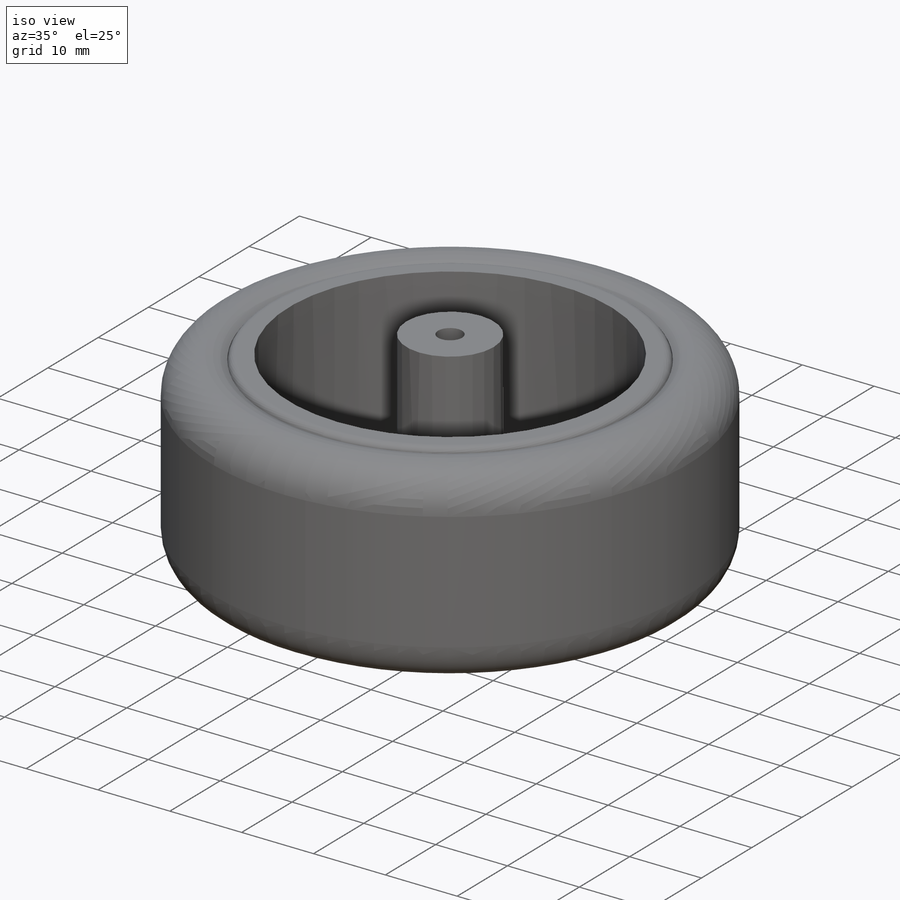
[diagram: iso view]
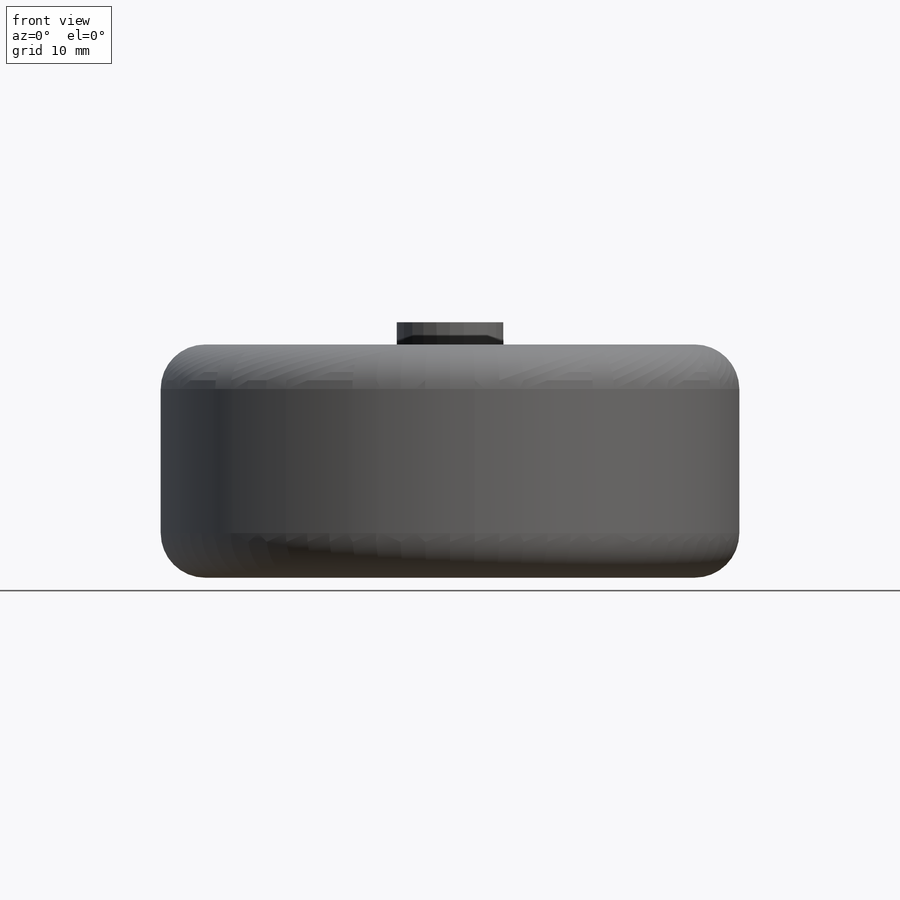
[diagram: front view]
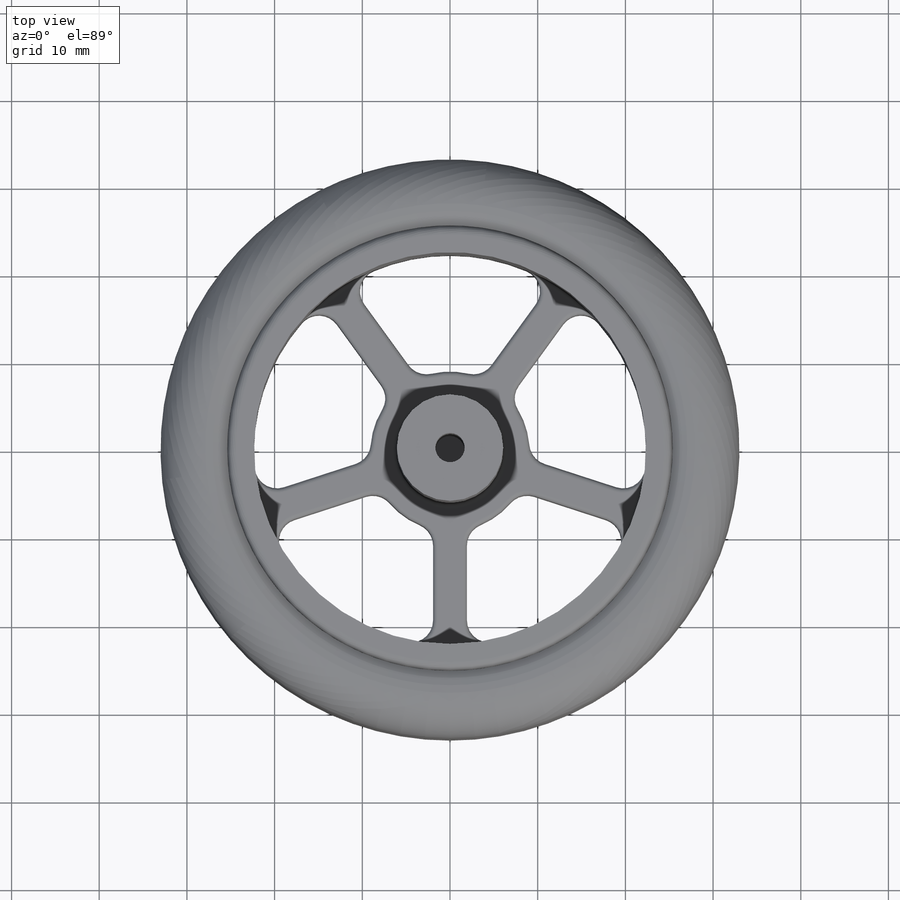
[diagram: top view]
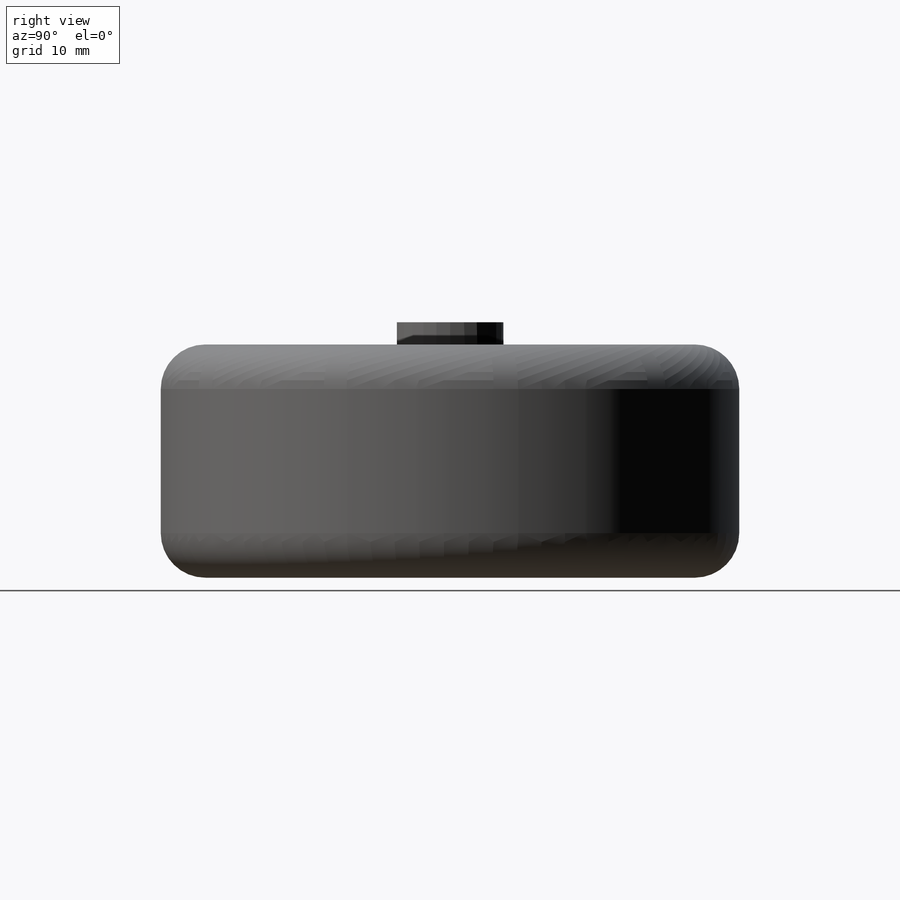
[diagram: right view]
SOLIDWORKS PART (.sldprt)
format: sldprt  version: not decoded by parser v0  size: 1,094,144 bytes
history: native  units: mm
features: sketch x2, fillet x2, material x1, revolve x1, cut_extrude x1, pattern_circular x1 (+13 scaffold rows collapsed)
feature tree (21):
  scaffold x13  (default folders/planes/origin — collapsed)
  material  "Material <not specified>"
  sketch  "Sketch1"  dims[c1.D5=5.08mm c1.D6=1.0mm c1.D7=1.0mm c1.D8=1.0mm c1.D9=1.0mm c1.D1=26.6mm c1.D2=33.0mm c1.D3=22.35mm c1.D4=6.9mm c2.D5=1.0mm c2.D4=~1.906059mm c3.D5=~1.906059mm c3.D4=1.675mm c3.D7=25.4mm]
  revolve  "Revolve1"  Angle=360deg
  sketch  "Sketch4"  dims[D3=2.54mm D4=44.18mm D2=~1.926651mm D1=5.0]
  cut_extrude  "Cut-Extrude1"  [1 undecoded]
  pattern_circular  "CirPattern1"  Count=5 Angle=360deg
  fillet  "Fillet6"  Radius=1.27mm
  fillet  "Fillet8"  Radius=0.508mm
decode coverage: 6 of 7 modeling features carry decoded parameters
note: ~ marks probable driven/reference dimensions
note: 1 parameter value undecoded
note: suppression state not decoded; provenance and decode notes live in map.json
